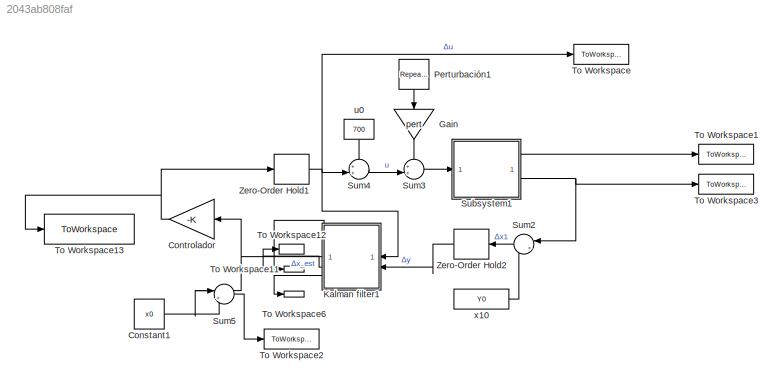
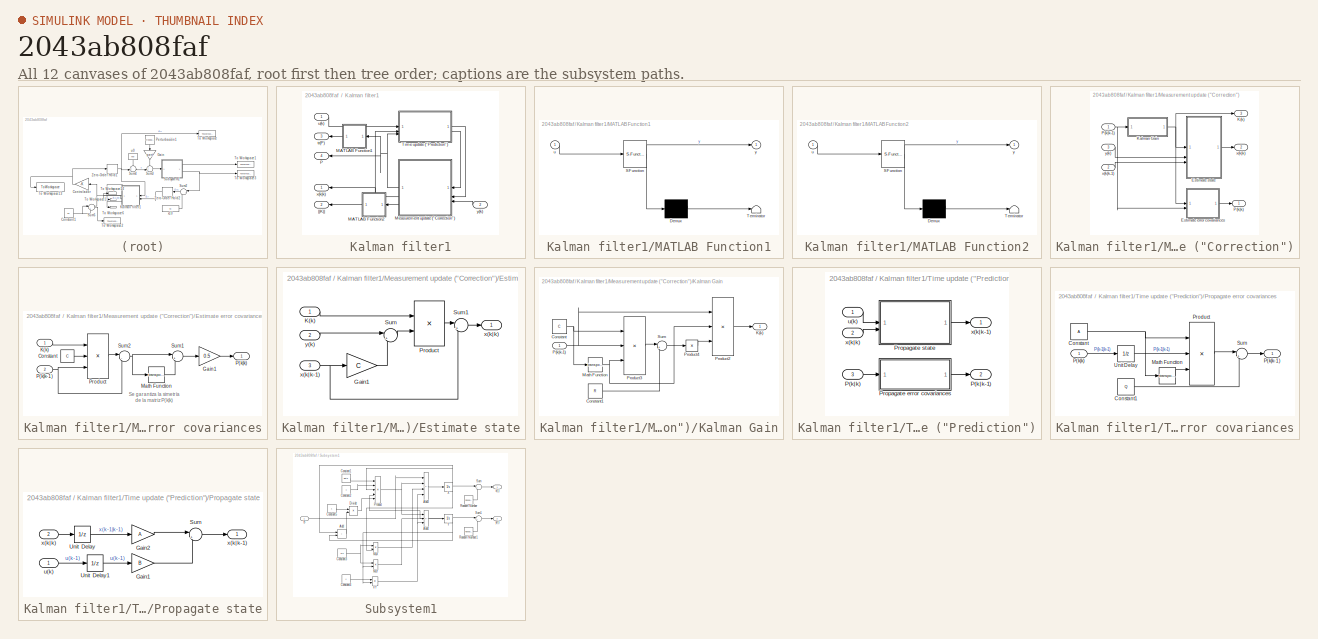
[diagram: thumbnail index - all 12 canvases of the model, root first then tree order]
MODEL slx_2043ab808faf
KIND model
CONFIG AbsTol = auto
CONFIG EnableMultiTasking = on
CONFIG FixedStep = auto
CONFIG MaxStep = 0.01
CONFIG MinStep = auto
CONFIG RelTol = 1e-3
CONFIG SampleTimeConstraint = Unconstrained
CONFIG SolverName = ode45
CONFIG StartTime = 0.0
CONFIG StopTime = tmax
BLOCK [Constant] Constant1
  Value = x0
BLOCK [Gain] Controlador
  Gain = -K
  Multiplication = Matrix(K*u)
BLOCK [Gain] Gain
  Gain = pert
  NameLocation = left
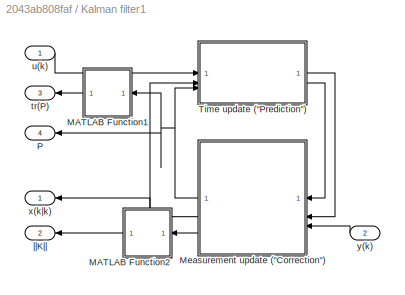
BLOCK [SubSystem] Kalman filter1
BLOCK [SubSystem] Kalman filter1/MATLAB Function1
  ErrorFcn = Stateflow.Translate.translate
  LibrarySourceBlock = simulink/User-Defined\nFunctions/MATLAB Function
  NameLocation = top
  PermitHierarchicalResolution = ExplicitOnly
  SFBlockType = MATLAB Function
  TreatAsAtomicUnit = on
BLOCK [Demux] Kalman filter1/MATLAB Function1/ Demux 
  Outputs = 1
BLOCK [S-Function] Kalman filter1/MATLAB Function1/ SFunction 
  EnableBusSupport = on
  FunctionName = sf_sfun
  PortCounts = [1 2]
  SFcnIsStateOwnerBlock = off
  SFunctionDeploymentMode = off
  Tag = Stateflow S-Function 3
BLOCK [Terminator] Kalman filter1/MATLAB Function1/ Terminator 
BLOCK [Inport] Kalman filter1/MATLAB Function1/u
BLOCK [Outport] Kalman filter1/MATLAB Function1/y
BLOCK [SubSystem] Kalman filter1/MATLAB Function2
  ErrorFcn = Stateflow.Translate.translate
  LibrarySourceBlock = simulink/User-Defined\nFunctions/MATLAB Function
  NameLocation = top
  PermitHierarchicalResolution = ExplicitOnly
  SFBlockType = MATLAB Function
  TreatAsAtomicUnit = on
BLOCK [Demux] Kalman filter1/MATLAB Function2/ Demux 
  Outputs = 1
BLOCK [S-Function] Kalman filter1/MATLAB Function2/ SFunction 
  EnableBusSupport = on
  FunctionName = sf_sfun
  PortCounts = [1 2]
  SFcnIsStateOwnerBlock = off
  SFunctionDeploymentMode = off
  Tag = Stateflow S-Function 4
BLOCK [Terminator] Kalman filter1/MATLAB Function2/ Terminator 
BLOCK [Inport] Kalman filter1/MATLAB Function2/u
BLOCK [Outport] Kalman filter1/MATLAB Function2/y
BLOCK [SubSystem] Kalman filter1/Measurement update ("Correction")
BLOCK [SubSystem] Kalman filter1/Measurement update ("Correction")/Estimate error covariances
BLOCK [Constant] Kalman filter1/Measurement update ("Correction")/Estimate error covariances/Constant
  SampleTime = Ts
  Value = C
  VectorParams1D = off
BLOCK [Gain] Kalman filter1/Measurement update ("Correction")/Estimate error covariances/Gain1
  Gain = 0.5
BLOCK [Inport] Kalman filter1/Measurement update ("Correction")/Estimate error covariances/K(k)
BLOCK [Math] Kalman filter1/Measurement update ("Correction")/Estimate error covariances/Math Function
  Operator = transpose
  SignedPower = on
BLOCK [Outport] Kalman filter1/Measurement update ("Correction")/Estimate error covariances/P(k|k)
BLOCK [Inport] Kalman filter1/Measurement update ("Correction")/Estimate error covariances/P(k|k-1)
  Port = 2
BLOCK [Product] Kalman filter1/Measurement update ("Correction")/Estimate error covariances/Product
  Inputs = 3
  Multiplication = Matrix(*)
BLOCK [Sum] Kalman filter1/Measurement update ("Correction")/Estimate error covariances/Sum1
  Inputs = |++
BLOCK [Sum] Kalman filter1/Measurement update ("Correction")/Estimate error covariances/Sum2
  Inputs = |-+
BLOCK [SubSystem] Kalman filter1/Measurement update ("Correction")/Estimate state
BLOCK [Gain] Kalman filter1/Measurement update ("Correction")/Estimate state/Gain1
  Gain = C
  Multiplication = Matrix(K*u)
BLOCK [Inport] Kalman filter1/Measurement update ("Correction")/Estimate state/K(k)
BLOCK [Product] Kalman filter1/Measurement update ("Correction")/Estimate state/Product
  Multiplication = Matrix(*)
BLOCK [Sum] Kalman filter1/Measurement update ("Correction")/Estimate state/Sum
  Inputs = |+-
BLOCK [Sum] Kalman filter1/Measurement update ("Correction")/Estimate state/Sum1
  Inputs = |++
BLOCK [Outport] Kalman filter1/Measurement update ("Correction")/Estimate state/x(k|k)
BLOCK [Inport] Kalman filter1/Measurement update ("Correction")/Estimate state/x(k|k-1)
  Port = 3
BLOCK [Inport] Kalman filter1/Measurement update ("Correction")/Estimate state/y(k)
  Port = 2
BLOCK [Outport] Kalman filter1/Measurement update ("Correction")/K(k)
  Port = 3
BLOCK [SubSystem] Kalman filter1/Measurement update ("Correction")/Kalman Gain
BLOCK [Constant] Kalman filter1/Measurement update ("Correction")/Kalman Gain/Constant
  SampleTime = Ts
  Value = C
  VectorParams1D = off
BLOCK [Constant] Kalman filter1/Measurement update ("Correction")/Kalman Gain/Constant1
  SampleTime = Ts
  Value = R
BLOCK [Outport] Kalman filter1/Measurement update ("Correction")/Kalman Gain/K(k)
BLOCK [Math] Kalman filter1/Measurement update ("Correction")/Kalman Gain/Math Function
  Operator = transpose
  SignedPower = on
BLOCK [Inport] Kalman filter1/Measurement update ("Correction")/Kalman Gain/P(k|k-1)
BLOCK [Product] Kalman filter1/Measurement update ("Correction")/Kalman Gain/Product2
  Inputs = 3
  Multiplication = Matrix(*)
BLOCK [Product] Kalman filter1/Measurement update ("Correction")/Kalman Gain/Product3
  Inputs = 3
  Multiplication = Matrix(*)
BLOCK [Product] Kalman filter1/Measurement update ("Correction")/Kalman Gain/Product4
  Inputs = /
  Multiplication = Matrix(*)
BLOCK [Sum] Kalman filter1/Measurement update ("Correction")/Kalman Gain/Sum
  Inputs = |++
BLOCK [Outport] Kalman filter1/Measurement update ("Correction")/P(k|k)
BLOCK [Inport] Kalman filter1/Measurement update ("Correction")/P(k|k-1)
BLOCK [Outport] Kalman filter1/Measurement update ("Correction")/x(k|k)
  Port = 2
BLOCK [Inport] Kalman filter1/Measurement update ("Correction")/x(k|k-1)
  Port = 2
BLOCK [Inport] Kalman filter1/Measurement update ("Correction")/y(k)
  Port = 3
BLOCK [Outport] Kalman filter1/P
  Port = 4
BLOCK [SubSystem] Kalman filter1/Time update ("Prediction")
  NameLocation = top
BLOCK [Inport] Kalman filter1/Time update ("Prediction")/P(k|k)
  Port = 3
BLOCK [Outport] Kalman filter1/Time update ("Prediction")/P(k|k-1)
  Port = 2
BLOCK [SubSystem] Kalman filter1/Time update ("Prediction")/Propagate error covariances
BLOCK [Constant] Kalman filter1/Time update ("Prediction")/Propagate error covariances/Constant
  SampleTime = Ts
  Value = A
BLOCK [Constant] Kalman filter1/Time update ("Prediction")/Propagate error covariances/Constant1
  SampleTime = Ts
  Value = Q
BLOCK [Math] Kalman filter1/Time update ("Prediction")/Propagate error covariances/Math Function
  Operator = transpose
  SignedPower = on
BLOCK [Inport] Kalman filter1/Time update ("Prediction")/Propagate error covariances/P(k|k)
BLOCK [Outport] Kalman filter1/Time update ("Prediction")/Propagate error covariances/P(k|k-1)
BLOCK [Product] Kalman filter1/Time update ("Prediction")/Propagate error covariances/Product
  Inputs = 3
  Multiplication = Matrix(*)
  RndMeth = Zero
  SampleTime = Ts
BLOCK [Sum] Kalman filter1/Time update ("Prediction")/Propagate error covariances/Sum
  Inputs = |++
BLOCK [UnitDelay] Kalman filter1/Time update ("Prediction")/Propagate error covariances/Unit Delay
  HasFrameUpgradeWarning = on
  InitialCondition = P0
  SampleTime = Ts
BLOCK [SubSystem] Kalman filter1/Time update ("Prediction")/Propagate state
BLOCK [Gain] Kalman filter1/Time update ("Prediction")/Propagate state/Gain1
  Gain = B
  Multiplication = Matrix(K*u)
BLOCK [Gain] Kalman filter1/Time update ("Prediction")/Propagate state/Gain2
  Gain = A
  Multiplication = Matrix(K*u)
BLOCK [Sum] Kalman filter1/Time update ("Prediction")/Propagate state/Sum
  Inputs = |++
BLOCK [UnitDelay] Kalman filter1/Time update ("Prediction")/Propagate state/Unit Delay
  HasFrameUpgradeWarning = on
  InitialCondition = x0
  SampleTime = Ts
BLOCK [UnitDelay] Kalman filter1/Time update ("Prediction")/Propagate state/Unit Delay1
  HasFrameUpgradeWarning = on
  SampleTime = Ts
BLOCK [Inport] Kalman filter1/Time update ("Prediction")/Propagate state/u(k)
BLOCK [Inport] Kalman filter1/Time update ("Prediction")/Propagate state/x(k|k)
  Port = 2
BLOCK [Outport] Kalman filter1/Time update ("Prediction")/Propagate state/x(k|k-1)
BLOCK [Inport] Kalman filter1/Time update ("Prediction")/u(k)
BLOCK [Inport] Kalman filter1/Time update ("Prediction")/x(k|k)
  Port = 2
BLOCK [Outport] Kalman filter1/Time update ("Prediction")/x(k|k-1)
BLOCK [Outport] Kalman filter1/tr(P)
  Port = 3
BLOCK [Inport] Kalman filter1/u(k)
BLOCK [Outport] Kalman filter1/x(k|k)
BLOCK [Inport] Kalman filter1/y(k)
  NameLocation = top
  Port = 2
BLOCK [Outport] Kalman filter1/||K||
  Port = 2
BLOCK [Reference] Perturbación1  REF=simulink/Sources/Repeating
Sequence
Interpolated
  NameLocation = right
  SourceBlock = simulink/Sources/Repeating\nSequence\nInterpolated
  SourceType = Repeating Sequence Interpolated
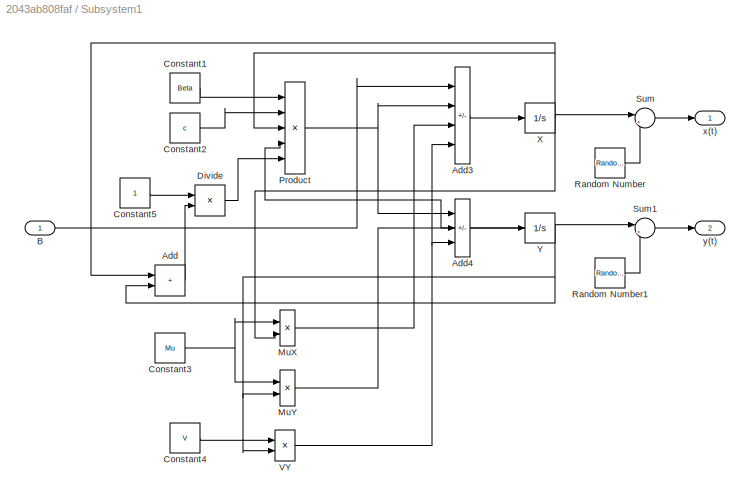
BLOCK [SubSystem] Subsystem1
BLOCK [Sum] Subsystem1/Add
  IconShape = rectangular
BLOCK [Sum] Subsystem1/Add3
  IconShape = rectangular
  Inputs = +--+
BLOCK [Sum] Subsystem1/Add4
  IconShape = rectangular
  Inputs = +--
BLOCK [Inport] Subsystem1/B
BLOCK [Constant] Subsystem1/Constant1
  Value = Beta
BLOCK [Constant] Subsystem1/Constant2
  Value = c
BLOCK [Constant] Subsystem1/Constant3
  Value = Mu
BLOCK [Constant] Subsystem1/Constant4
  Value = V
BLOCK [Constant] Subsystem1/Constant5
BLOCK [Product] Subsystem1/Divide
  Inputs = */
BLOCK [Product] Subsystem1/MuX
BLOCK [Product] Subsystem1/MuY
BLOCK [Product] Subsystem1/Product
  Inputs = 5
BLOCK [RandomNumber] Subsystem1/Random Number
  SampleTime = Ts
  Variance = 64
BLOCK [RandomNumber] Subsystem1/Random Number1
  SampleTime = Ts
  Variance = 640
BLOCK [Sum] Subsystem1/Sum
  Inputs = |++
BLOCK [Sum] Subsystem1/Sum1
  Inputs = |++
BLOCK [Product] Subsystem1/VY
BLOCK [Integrator] Subsystem1/X
  InitialCondition = X0(1)
  LimitOutput = on
  LowerSaturationLimit = 0
BLOCK [Integrator] Subsystem1/Y
  InitialCondition = X0(2)
  LimitOutput = on
  LowerSaturationLimit = 0
BLOCK [Outport] Subsystem1/x(t)
BLOCK [Outport] Subsystem1/y(t)
  Port = 2
BLOCK [Sum] Sum2
  Inputs = |+-
  NameLocation = top
BLOCK [Sum] Sum3
  Inputs = ++|
BLOCK [Sum] Sum4
  Inputs = ++|
BLOCK [Sum] Sum5
  Inputs = |++
BLOCK [ToWorkspace] To Workspace
  MaxDataPoints = inf
  SampleTime = Ts
  SaveFormat = Structure With Time
  VariableName = du
BLOCK [ToWorkspace] To Workspace1
  MaxDataPoints = inf
  SampleTime = Ts
  SaveFormat = Structure With Time
  VariableName = X_Exp
BLOCK [ToWorkspace] To Workspace11
  FixptAsFi = on
  MaxDataPoints = inf
  SampleTime = -1
  SaveFormat = Structure With Time
  VariableName = traza
BLOCK [ToWorkspace] To Workspace12
  FixptAsFi = on
  MaxDataPoints = inf
  SampleTime = -1
  SaveFormat = Structure With Time
  VariableName = norma
BLOCK [ToWorkspace] To Workspace13
  FixptAsFi = on
  MaxDataPoints = inf
  SampleTime = -1
  SaveFormat = Timeseries
  VariableName = Keff
BLOCK [ToWorkspace] To Workspace2
  MaxDataPoints = inf
  SampleTime = Ts
  SaveFormat = Structure With Time
  VariableName = dx_est
BLOCK [ToWorkspace] To Workspace3
  MaxDataPoints = inf
  SampleTime = Ts
  SaveFormat = Structure With Time
  VariableName = Y_Exp
BLOCK [ToWorkspace] To Workspace6
  FixptAsFi = on
  MaxDataPoints = inf
  SampleTime = -1
  SaveFormat = Structure With Time
  VariableName = P
BLOCK [ZeroOrderHold] Zero-Order Hold1
  SampleTime = Ts
BLOCK [ZeroOrderHold] Zero-Order Hold2
  NameLocation = top
  SampleTime = Ts
BLOCK [Constant] u0
  NameLocation = left
  Value = 700
BLOCK [Constant] x10
  NameLocation = top
  Value = Y0
ANNOTATION Kalman filter1/Measurement update ("Correction")/Estimate error covariances: Se garantiza la simetría de la matriz P(k|k)
LINE Constant1:1 -> Sum5:2
NET Controlador:1 -> To Workspace13:1, Zero-Order Hold1:1
LINE Gain:1 -> Sum3:1
LINE Kalman filter1/MATLAB Function1:1 -> Kalman filter1/tr(P):1
LINE Kalman filter1/MATLAB Function2:1 -> Kalman filter1/||K||:1
LINE Kalman filter1/Measurement update ("Correction")/Estimate error covariances/Constant:1 -> Kalman filter1/Measurement update ("Correction")/Estimate error covariances/Product:2
LINE Kalman filter1/Measurement update ("Correction")/Estimate error covariances/Gain1:1 -> Kalman filter1/Measurement update ("Correction")/Estimate error covariances/P(k|k):1
LINE Kalman filter1/Measurement update ("Correction")/Estimate error covariances/K(k):1 -> Kalman filter1/Measurement update ("Correction")/Estimate error covariances/Product:1
LINE Kalman filter1/Measurement update ("Correction")/Estimate error covariances/Math Function:1 -> Kalman filter1/Measurement update ("Correction")/Estimate error covariances/Sum1:2
NET Kalman filter1/Measurement update ("Correction")/Estimate error covariances/P(k|k-1):1 -> Kalman filter1/Measurement update ("Correction")/Estimate error covariances/Product:3, Kalman filter1/Measurement update ("Correction")/Estimate error covariances/Sum2:2
LINE Kalman filter1/Measurement update ("Correction")/Estimate error covariances/Product:1 -> Kalman filter1/Measurement update ("Correction")/Estimate error covariances/Sum2:1
LINE Kalman filter1/Measurement update ("Correction")/Estimate error covariances/Sum1:1 -> Kalman filter1/Measurement update ("Correction")/Estimate error covariances/Gain1:1
NET Kalman filter1/Measurement update ("Correction")/Estimate error covariances/Sum2:1 -> Kalman filter1/Measurement update ("Correction")/Estimate error covariances/Math Function:1, Kalman filter1/Measurement update ("Correction")/Estimate error covariances/Sum1:1
LINE Kalman filter1/Measurement update ("Correction")/Estimate error covariances:1 -> Kalman filter1/Measurement update ("Correction")/P(k|k):1
LINE Kalman filter1/Measurement update ("Correction")/Estimate state/Gain1:1 -> Kalman filter1/Measurement update ("Correction")/Estimate state/Sum:2
LINE Kalman filter1/Measurement update ("Correction")/Estimate state/K(k):1 -> Kalman filter1/Measurement update ("Correction")/Estimate state/Product:1
LINE Kalman filter1/Measurement update ("Correction")/Estimate state/Product:1 -> Kalman filter1/Measurement update ("Correction")/Estimate state/Sum1:1
LINE Kalman filter1/Measurement update ("Correction")/Estimate state/Sum1:1 -> Kalman filter1/Measurement update ("Correction")/Estimate state/x(k|k):1
LINE Kalman filter1/Measurement update ("Correction")/Estimate state/Sum:1 -> Kalman filter1/Measurement update ("Correction")/Estimate state/Product:2
NET Kalman filter1/Measurement update ("Correction")/Estimate state/x(k|k-1):1 -> Kalman filter1/Measurement update ("Correction")/Estimate state/Gain1:1, Kalman filter1/Measurement update ("Correction")/Estimate state/Sum1:2
LINE Kalman filter1/Measurement update ("Correction")/Estimate state/y(k):1 -> Kalman filter1/Measurement update ("Correction")/Estimate state/Sum:1
LINE Kalman filter1/Measurement update ("Correction")/Estimate state:1 -> Kalman filter1/Measurement update ("Correction")/x(k|k):1
LINE Kalman filter1/Measurement update ("Correction")/Kalman Gain/Constant1:1 -> Kalman filter1/Measurement update ("Correction")/Kalman Gain/Sum:2
NET Kalman filter1/Measurement update ("Correction")/Kalman Gain/Constant:1 -> Kalman filter1/Measurement update ("Correction")/Kalman Gain/Math Function:1, Kalman filter1/Measurement update ("Correction")/Kalman Gain/Product3:1
NET Kalman filter1/Measurement update ("Correction")/Kalman Gain/Math Function:1 -> Kalman filter1/Measurement update ("Correction")/Kalman Gain/Product2:2, Kalman filter1/Measurement update ("Correction")/Kalman Gain/Product3:3
NET Kalman filter1/Measurement update ("Correction")/Kalman Gain/P(k|k-1):1 -> Kalman filter1/Measurement update ("Correction")/Kalman Gain/Product2:1, Kalman filter1/Measurement update ("Correction")/Kalman Gain/Product3:2
LINE Kalman filter1/Measurement update ("Correction")/Kalman Gain/Product2:1 -> Kalman filter1/Measurement update ("Correction")/Kalman Gain/K(k):1
LINE Kalman filter1/Measurement update ("Correction")/Kalman Gain/Product3:1 -> Kalman filter1/Measurement update ("Correction")/Kalman Gain/Sum:1
LINE Kalman filter1/Measurement update ("Correction")/Kalman Gain/Product4:1 -> Kalman filter1/Measurement update ("Correction")/Kalman Gain/Product2:3
LINE Kalman filter1/Measurement update ("Correction")/Kalman Gain/Sum:1 -> Kalman filter1/Measurement update ("Correction")/Kalman Gain/Product4:1
NET Kalman filter1/Measurement update ("Correction")/Kalman Gain:1 -> Kalman filter1/Measurement update ("Correction")/Estimate error covariances:1, Kalman filter1/Measurement update ("Correction")/Estimate state:1, Kalman filter1/Measurement update ("Correction")/K(k):1
NET Kalman filter1/Measurement update ("Correction")/P(k|k-1):1 -> Kalman filter1/Measurement update ("Correction")/Estimate error covariances:2, Kalman filter1/Measurement update ("Correction")/Kalman Gain:1
LINE Kalman filter1/Measurement update ("Correction")/x(k|k-1):1 -> Kalman filter1/Measurement update ("Correction")/Estimate state:3
LINE Kalman filter1/Measurement update ("Correction")/y(k):1 -> Kalman filter1/Measurement update ("Correction")/Estimate state:2
NET Kalman filter1/Measurement update ("Correction"):1 -> Kalman filter1/MATLAB Function1:1, Kalman filter1/P:1, Kalman filter1/Time update ("Prediction"):3
NET Kalman filter1/Measurement update ("Correction"):2 -> Kalman filter1/Time update ("Prediction"):2, Kalman filter1/x(k|k):1
LINE Kalman filter1/Measurement update ("Correction"):3 -> Kalman filter1/MATLAB Function2:1
LINE Kalman filter1/Time update ("Prediction")/P(k|k):1 -> Kalman filter1/Time update ("Prediction")/Propagate error covariances:1
LINE Kalman filter1/Time update ("Prediction")/Propagate error covariances/Constant1:1 -> Kalman filter1/Time update ("Prediction")/Propagate error covariances/Sum:2
NET Kalman filter1/Time update ("Prediction")/Propagate error covariances/Constant:1 -> Kalman filter1/Time update ("Prediction")/Propagate error covariances/Math Function:1, Kalman filter1/Time update ("Prediction")/Propagate error covariances/Product:1
LINE Kalman filter1/Time update ("Prediction")/Propagate error covariances/Math Function:1 -> Kalman filter1/Time update ("Prediction")/Propagate error covariances/Product:3
LINE Kalman filter1/Time update ("Prediction")/Propagate error covariances/P(k|k):1 -> Kalman filter1/Time update ("Prediction")/Propagate error covariances/Unit Delay:1
LINE Kalman filter1/Time update ("Prediction")/Propagate error covariances/Product:1 -> Kalman filter1/Time update ("Prediction")/Propagate error covariances/Sum:1
LINE Kalman filter1/Time update ("Prediction")/Propagate error covariances/Sum:1 -> Kalman filter1/Time update ("Prediction")/Propagate error covariances/P(k|k-1):1
LINE Kalman filter1/Time update ("Prediction")/Propagate error covariances/Unit Delay:1 -> Kalman filter1/Time update ("Prediction")/Propagate error covariances/Product:2
LINE Kalman filter1/Time update ("Prediction")/Propagate error covariances:1 -> Kalman filter1/Time update ("Prediction")/P(k|k-1):1
LINE Kalman filter1/Time update ("Prediction")/Propagate state/Gain1:1 -> Kalman filter1/Time update ("Prediction")/Propagate state/Sum:2
LINE Kalman filter1/Time update ("Prediction")/Propagate state/Gain2:1 -> Kalman filter1/Time update ("Prediction")/Propagate state/Sum:1
LINE Kalman filter1/Time update ("Prediction")/Propagate state/Sum:1 -> Kalman filter1/Time update ("Prediction")/Propagate state/x(k|k-1):1
LINE Kalman filter1/Time update ("Prediction")/Propagate state/Unit Delay1:1 -> Kalman filter1/Time update ("Prediction")/Propagate state/Gain1:1
LINE Kalman filter1/Time update ("Prediction")/Propagate state/Unit Delay:1 -> Kalman filter1/Time update ("Prediction")/Propagate state/Gain2:1
LINE Kalman filter1/Time update ("Prediction")/Propagate state/u(k):1 -> Kalman filter1/Time update ("Prediction")/Propagate state/Unit Delay1:1
LINE Kalman filter1/Time update ("Prediction")/Propagate state/x(k|k):1 -> Kalman filter1/Time update ("Prediction")/Propagate state/Unit Delay:1
LINE Kalman filter1/Time update ("Prediction")/Propagate state:1 -> Kalman filter1/Time update ("Prediction")/x(k|k-1):1
LINE Kalman filter1/Time update ("Prediction")/u(k):1 -> Kalman filter1/Time update ("Prediction")/Propagate state:1
LINE Kalman filter1/Time update ("Prediction")/x(k|k):1 -> Kalman filter1/Time update ("Prediction")/Propagate state:2
LINE Kalman filter1/Time update ("Prediction"):1 -> Kalman filter1/Measurement update ("Correction"):2
LINE Kalman filter1/Time update ("Prediction"):2 -> Kalman filter1/Measurement update ("Correction"):1
LINE Kalman filter1/u(k):1 -> Kalman filter1/Time update ("Prediction"):1
LINE Kalman filter1/y(k):1 -> Kalman filter1/Measurement update ("Correction"):3
NET Kalman filter1:1 -> Controlador:1, Sum5:1
LINE Kalman filter1:2 -> To Workspace12:1
LINE Kalman filter1:3 -> To Workspace11:1
LINE Kalman filter1:4 -> To Workspace6:1
LINE Perturbación1:1 -> Gain:1
LINE Subsystem1/Add3:1 -> Subsystem1/X:1
LINE Subsystem1/Add4:1 -> Subsystem1/Y:1
LINE Subsystem1/Add:1 -> Subsystem1/Divide:2
LINE Subsystem1/B:1 -> Subsystem1/Add3:1
LINE Subsystem1/Constant1:1 -> Subsystem1/Product:1
LINE Subsystem1/Constant2:1 -> Subsystem1/Product:2
NET Subsystem1/Constant3:1 -> Subsystem1/MuX:1, Subsystem1/MuY:1
LINE Subsystem1/Constant4:1 -> Subsystem1/VY:1
LINE Subsystem1/Constant5:1 -> Subsystem1/Divide:1
LINE Subsystem1/Divide:1 -> Subsystem1/Product:5
LINE Subsystem1/MuX:1 -> Subsystem1/Add3:3
LINE Subsystem1/MuY:1 -> Subsystem1/Add4:2
NET Subsystem1/Product:1 -> Subsystem1/Add3:2, Subsystem1/Add4:1
LINE Subsystem1/Random Number1:1 -> Subsystem1/Sum1:2
LINE Subsystem1/Random Number:1 -> Subsystem1/Sum:2
LINE Subsystem1/Sum1:1 -> Subsystem1/y(t):1
LINE Subsystem1/Sum:1 -> Subsystem1/x(t):1
NET Subsystem1/VY:1 -> Subsystem1/Add3:4, Subsystem1/Add4:3
NET Subsystem1/X:1 -> Subsystem1/Add:1, Subsystem1/MuX:2, Subsystem1/Product:3, Subsystem1/Sum:1
NET Subsystem1/Y:1 -> Subsystem1/Add:2, Subsystem1/MuY:2, Subsystem1/Product:4, Subsystem1/Sum1:1, Subsystem1/VY:2
LINE Subsystem1:1 -> To Workspace1:1
NET Subsystem1:2 -> Sum2:1, To Workspace3:1
LINE Sum2:1 -> Zero-Order Hold2:1
LINE Sum3:1 -> Subsystem1:1
LINE Sum4:1 -> Sum3:2
LINE Sum5:1 -> To Workspace2:1
NET Zero-Order Hold1:1 -> Kalman filter1:1, Sum4:2, To Workspace:1
LINE Zero-Order Hold2:1 -> Kalman filter1:2
LINE u0:1 -> Sum4:1
LINE x10:1 -> Sum2:2
note: NET lines group one-source signal fan-out (src -> all destinations, sorted); 1:1 wires keep LINE
CHART Kalman filter1/MATLAB Function2 states=1 transitions=1
  STATE_LABEL 'eML_blk_kernel()'
  STATE_LABEL 'SCRIPT:\nfunction y = fcn(u)\ny = norm(u);\n'
CHART Kalman filter1/MATLAB Function1 states=1 transitions=1
  STATE_LABEL 'eML_blk_kernel()'
  STATE_LABEL 'SCRIPT:\nfunction y = fcn(u)\ny = trace(u);\n'
CHART  states=0 transitions=0
CHART  states=0 transitions=0
